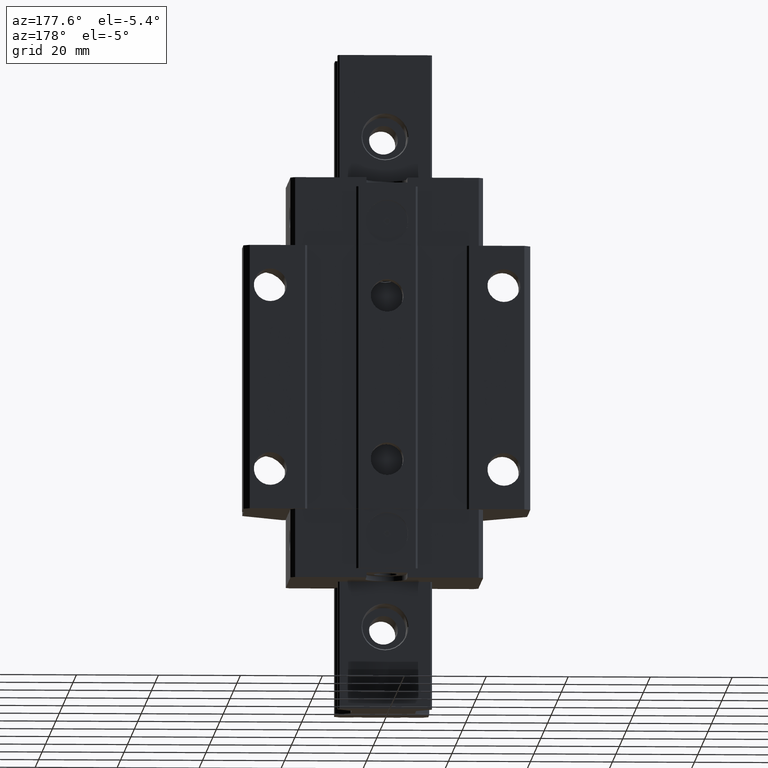
[diagram: clean part render]
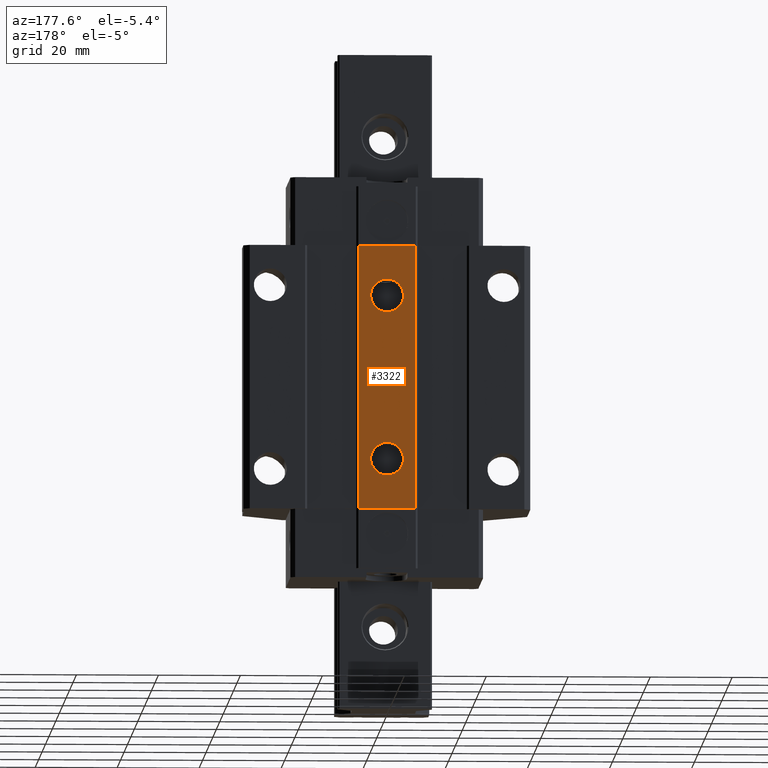
[diagram: same view with one face highlighted and labeled with its STEP entity id]
A machine part, auxiliary view. The second image highlights one B-rep face of the part: STEP entity #3322.
In plain terms, the highlighted planar face has unit normal (0, 1, 0).
Its self-contained STEP definition (entity closure, byte-faithful):
#92=DIRECTION('',(-1.E0,9.650307106733E-8,0.E0));
#93=VECTOR('',#92,1.399998886470E1);
#94=CARTESIAN_POINT('',(6.999996710688E0,-2.282640062583E-6,-3.225E1));
#95=LINE('',#94,#93);
#940=DIRECTION('',(0.E0,0.E0,1.E0));
#941=VECTOR('',#940,6.45E1);
#942=CARTESIAN_POINT('',(6.999996710688E0,-2.282640062583E-6,-3.225E1));
#943=LINE('',#942,#941);
#944=DIRECTION('',(-1.E0,9.650307106733E-8,0.E0));
#945=VECTOR('',#944,1.399998886470E1);
#946=CARTESIAN_POINT('',(6.999996710689E0,-2.282640062583E-6,3.225E1));
#947=LINE('',#946,#945);
#968=CARTESIAN_POINT('',(-2.025046796916E-13,7.958E-13,2.E1));
#969=DIRECTION('',(0.E0,1.E0,0.E0));
#970=DIRECTION('',(0.E0,0.E0,-1.E0));
#971=AXIS2_PLACEMENT_3D('',#968,#969,#970);
#973=CARTESIAN_POINT('',(-2.025046796916E-13,7.958E-13,2.E1));
#974=DIRECTION('',(0.E0,1.E0,0.E0));
#975=DIRECTION('',(0.E0,0.E0,1.E0));
#976=AXIS2_PLACEMENT_3D('',#973,#974,#975);
#978=CARTESIAN_POINT('',(-2.025046796916E-13,7.958E-13,-2.E1));
#979=DIRECTION('',(0.E0,1.E0,0.E0));
#980=DIRECTION('',(0.E0,0.E0,-1.E0));
#981=AXIS2_PLACEMENT_3D('',#978,#979,#980);
#983=CARTESIAN_POINT('',(-2.025046796916E-13,7.958E-13,-2.E1));
#984=DIRECTION('',(0.E0,1.E0,0.E0));
#985=DIRECTION('',(0.E0,0.E0,1.E0));
#986=AXIS2_PLACEMENT_3D('',#983,#984,#985);
#1219=DIRECTION('',(0.E0,0.E0,1.E0));
#1220=VECTOR('',#1219,6.45E1);
#1221=CARTESIAN_POINT('',(-6.999992154009E0,-9.315981422314E-7,-3.225E1));
#1222=LINE('',#1221,#1220);
#1619=CARTESIAN_POINT('',(6.999996710688E0,-2.282640062579E-6,-3.225E1));
#1620=VERTEX_POINT('',#1619);
#1621=CARTESIAN_POINT('',(-6.999992154009E0,-9.315981422314E-7,-3.225E1));
#1622=VERTEX_POINT('',#1621);
#1707=CARTESIAN_POINT('',(6.999996710689E0,-2.282640062583E-6,3.225E1));
#1708=VERTEX_POINT('',#1707);
#1709=CARTESIAN_POINT('',(-6.999992154009E0,-9.315981422314E-7,3.225E1));
#1710=VERTEX_POINT('',#1709);
#2008=CARTESIAN_POINT('',(-2.016165012719E-13,7.958E-13,1.6E1));
#2009=CARTESIAN_POINT('',(-2.038827006529E-13,7.958E-13,2.4E1));
#2010=VERTEX_POINT('',#2008);
#2011=VERTEX_POINT('',#2009);
#2012=CARTESIAN_POINT('',(-2.016165012719E-13,7.958E-13,-2.4E1));
#2013=CARTESIAN_POINT('',(-2.038827006529E-13,7.958E-13,-1.6E1));
#2014=VERTEX_POINT('',#2012);
#2015=VERTEX_POINT('',#2013);
#3299=CARTESIAN_POINT('',(7.E0,7.958E-13,-3.225E1));
#3300=DIRECTION('',(0.E0,1.E0,0.E0));
#3301=DIRECTION('',(-1.E0,0.E0,0.E0));
#3302=AXIS2_PLACEMENT_3D('',#3299,#3300,#3301);
#3303=PLANE('',#3302);
#3304=ORIENTED_EDGE('',*,*,#2134,.F.);
#3306=ORIENTED_EDGE('',*,*,#3305,.T.);
#3307=ORIENTED_EDGE('',*,*,#2311,.T.);
#3309=ORIENTED_EDGE('',*,*,#3308,.F.);
#3310=EDGE_LOOP('',(#3304,#3306,#3307,#3309));
#3311=FACE_OUTER_BOUND('',#3310,.F.);
#3312=ORIENTED_EDGE('',*,*,#3227,.T.);
#3313=ORIENTED_EDGE('',*,*,#3241,.T.);
#3314=EDGE_LOOP('',(#3312,#3313));
#3315=FACE_BOUND('',#3314,.F.);
#3317=ORIENTED_EDGE('',*,*,#3316,.T.);
#3319=ORIENTED_EDGE('',*,*,#3318,.T.);
#3320=EDGE_LOOP('',(#3317,#3319));
#3321=FACE_BOUND('',#3320,.F.);
#3322=ADVANCED_FACE('',(#3311,#3315,#3321),#3303,.T.);
#972=CIRCLE('',#971,4.E0);
#977=CIRCLE('',#976,4.E0);
#982=CIRCLE('',#981,4.E0);
#987=CIRCLE('',#986,4.E0);
#2134=EDGE_CURVE('',#1620,#1622,#95,.T.);
#2311=EDGE_CURVE('',#1708,#1710,#947,.T.);
#3227=EDGE_CURVE('',#2010,#2011,#972,.T.);
#3241=EDGE_CURVE('',#2011,#2010,#977,.T.);
#3305=EDGE_CURVE('',#1620,#1708,#943,.T.);
#3308=EDGE_CURVE('',#1622,#1710,#1222,.T.);
#3316=EDGE_CURVE('',#2014,#2015,#982,.T.);
#3318=EDGE_CURVE('',#2015,#2014,#987,.T.);